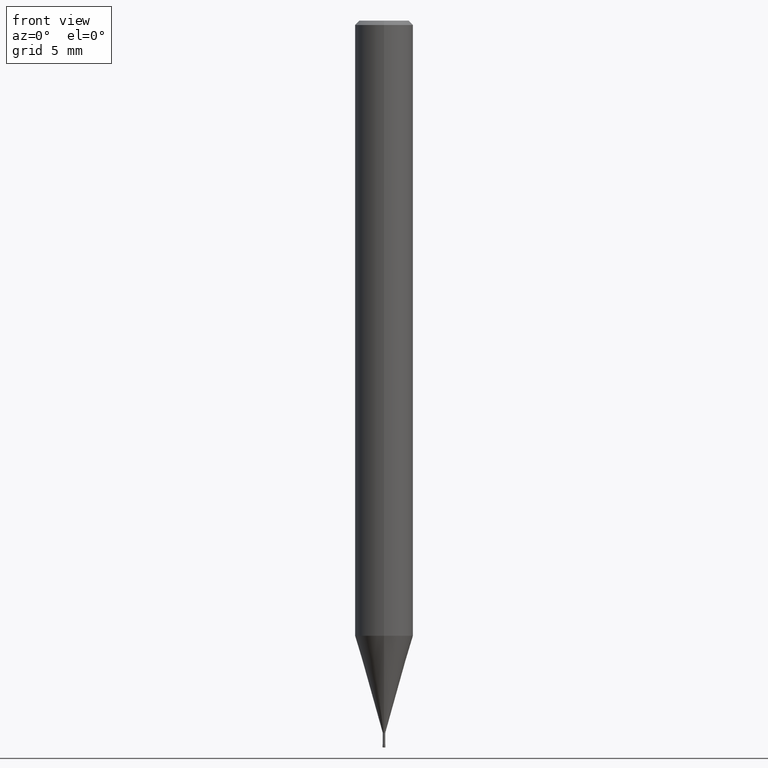
[diagram: clean part render]
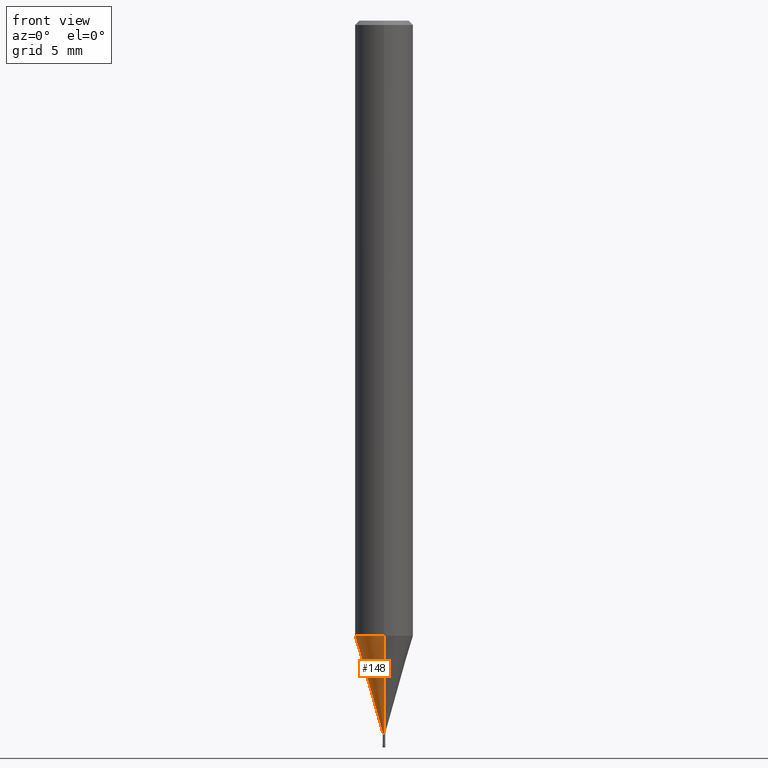
[diagram: same view with one face highlighted and labeled with its STEP entity id]
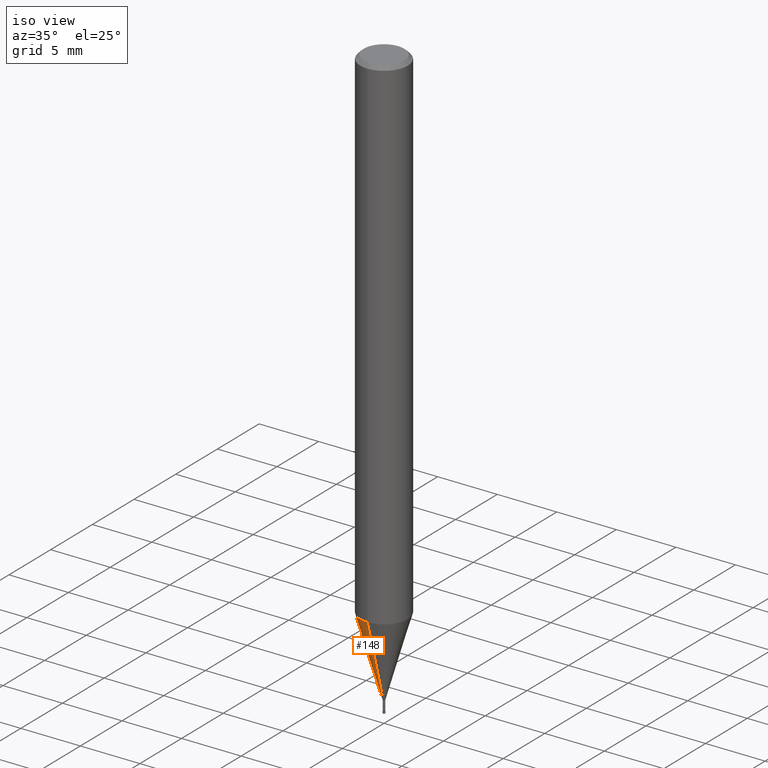
[diagram: same view with one face highlighted and labeled with its STEP entity id]
A machine part, front view. The second image highlights one B-rep face of the part: STEP entity #148.
A second angle (iso view) of the same face is appended — the face is thin or edge-on in the first view.
In plain terms, the highlighted conical surface has half-angle 16.001 deg.
Its self-contained STEP definition (entity closure, byte-faithful):
#102=VERTEX_POINT('',#255);
#128=VERTEX_POINT('',#288);
#140=EDGE_CURVE('',#232,#202,#303,.T.);
#148=ADVANCED_FACE('',(#311),#312,.T.);
#178=EDGE_CURVE('',#128,#232,#345,.T.);
#188=EDGE_CURVE('',#128,#102,#355,.T.);
#192=EDGE_CURVE('',#202,#102,#360,.T.);
#202=VERTEX_POINT('',#371);
#232=VERTEX_POINT('',#403);
#255=CARTESIAN_POINT('',(0.0,0.08495,-49.0));
#288=CARTESIAN_POINT('',(1.04030309757211E-017,-0.08495,-49.0));
#303=CIRCLE('',#472,1.99995);
#311=FACE_OUTER_BOUND('',#483,.T.);
#312=CONICAL_SURFACE('',#484,1.04245,0.279268497676986);
#345=LINE('',#530,#531);
#355=CIRCLE('',#543,0.08495);
#360=LINE('',#549,#550);
#371=CARTESIAN_POINT('',(0.0,1.99995,-42.322));
#403=CARTESIAN_POINT('',(2.44915147732706E-016,-1.99995,-42.322));
#472=AXIS2_PLACEMENT_3D('',#686,#687,#688);
#483=EDGE_LOOP('',(#699,#700,#701,#702));
#484=AXIS2_PLACEMENT_3D('',#703,#704,#705);
#530=CARTESIAN_POINT('',(1.27659089354214E-016,-1.04245,-45.661));
#531=VECTOR('',#746,1.0);
#543=AXIS2_PLACEMENT_3D('',#754,#755,#756);
#549=CARTESIAN_POINT('',(-1.27659089354214E-016,1.04245,-45.661));
#550=VECTOR('',#765,1.0);
#686=CARTESIAN_POINT('',(0.0,0.0,-42.322));
#687=DIRECTION('',(0.0,0.0,-1.0));
#688=DIRECTION('',(0.0,1.0,0.0));
#699=ORIENTED_EDGE('',*,*,#192,.T.);
#700=ORIENTED_EDGE('',*,*,#188,.F.);
#701=ORIENTED_EDGE('',*,*,#178,.T.);
#702=ORIENTED_EDGE('',*,*,#140,.T.);
#703=CARTESIAN_POINT('',(0.0,0.0,-45.661));
#704=DIRECTION('',(-0.0,-0.0,1.0));
#705=DIRECTION('',(0.0,1.0,0.0));
#746=DIRECTION('',(3.37565876916665E-017,-0.275652560402792,0.961257335963365));
#754=CARTESIAN_POINT('',(0.0,0.0,-49.0));
#755=DIRECTION('',(0.0,0.0,-1.0));
#756=DIRECTION('',(0.0,1.0,0.0));
#765=DIRECTION('',(3.37565876916665E-017,-0.275652560402792,-0.961257335963365));